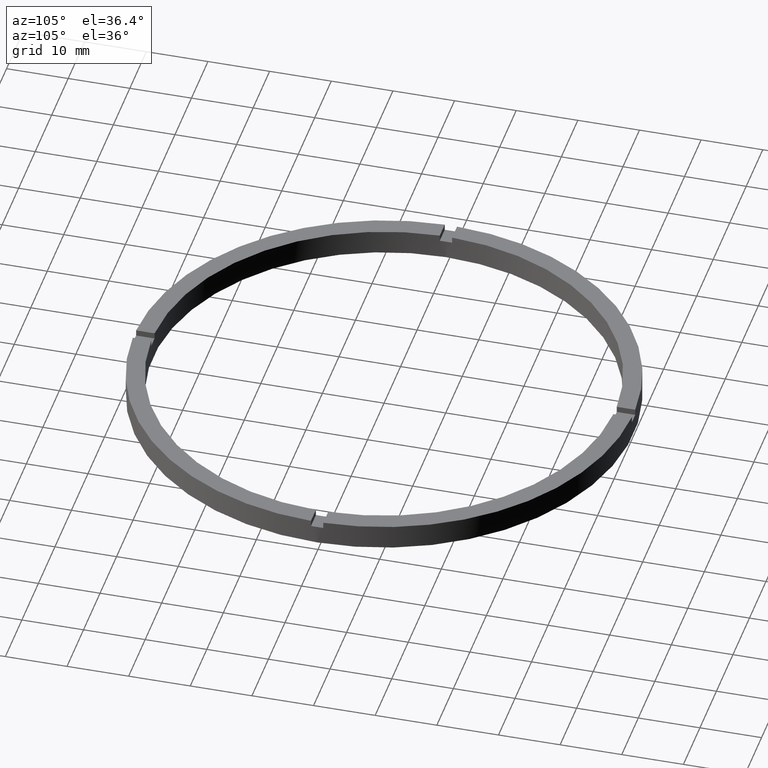
[diagram: clean part render]
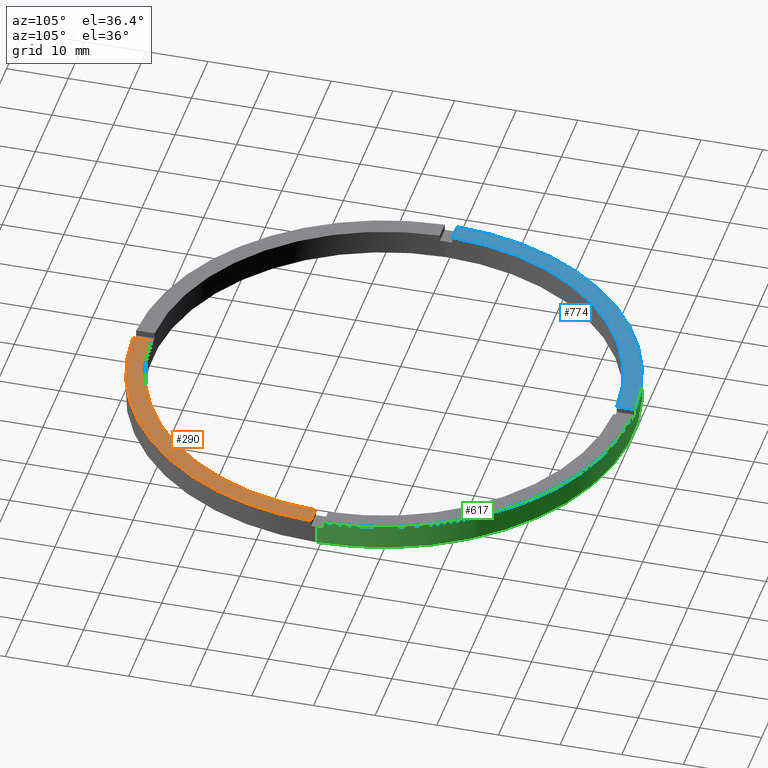
[diagram: same view with three faces highlighted in distinct colors, each labeled with its STEP entity id]
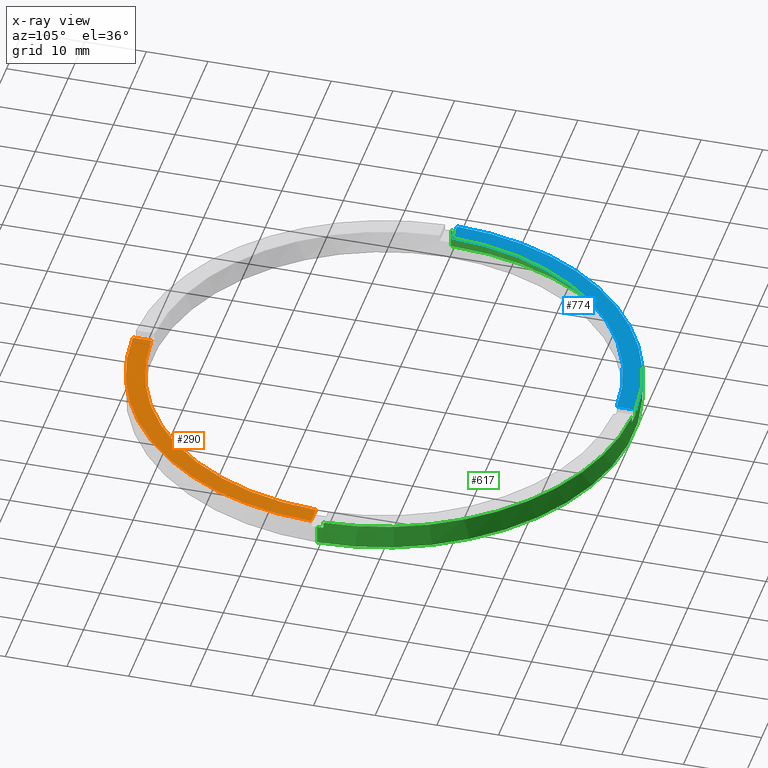
[diagram: x-ray of the same camera — body ghosted, the three highlighted faces saturated]
A machine part, auxiliary view with three faces highlighted in distinct colors.
The next image is the same camera in x-ray (body ghosted, the three faces saturated) — at least one of them is partly hidden behind the body in this view.
Their STEP definitions:

[orange] entity #290 — the highlighted planar face has unit normal (0, 0, 1).
#1 = AXIS2_PLACEMENT_3D ( 'NONE', #721, #779, #77 ) ;
#3 = DIRECTION ( 'NONE',  ( 1.000000000000000000, 0.000000000000000000, 0.000000000000000000 ) ) ;
#9 = DIRECTION ( 'NONE',  ( 0.000000000000000000, 0.000000000000000000, 1.000000000000000000 ) ) ;
#40 = LINE ( 'NONE', #628, #303 ) ;
#73 = VECTOR ( 'NONE', #529, 1000.000000000000000 ) ;
#77 = DIRECTION ( 'NONE',  ( 1.000000000000000000, 0.000000000000000000, 0.000000000000000000 ) ) ;
#84 = CARTESIAN_POINT ( 'NONE',  ( 0.000000000000000000, 0.000000000000000000, 4.000000000000000000 ) ) ;
#129 = PLANE ( 'NONE',  #412 ) ;
#132 = EDGE_CURVE ( 'NONE', #398, #511, #356, .T. ) ;
#137 = ORIENTED_EDGE ( 'NONE', *, *, #498, .F. ) ;
#180 = CARTESIAN_POINT ( 'NONE',  ( 37.48666429545312440, -1.000000000000157208, 4.000000000000000000 ) ) ;
#264 = CARTESIAN_POINT ( 'NONE',  ( 0.9999999999998409050, -40.48765243873742037, 4.000000000000000000 ) ) ;
#269 = CARTESIAN_POINT ( 'NONE',  ( 40.48765243873741326, -1.000000000000156986, 4.000000000000000000 ) ) ;
#290 = ADVANCED_FACE ( 'NONE', ( #322 ), #129, .T. ) ;
#303 = VECTOR ( 'NONE', #554, 1000.000000000000000 ) ;
#322 = FACE_OUTER_BOUND ( 'NONE', #418, .T. ) ;
#356 = CIRCLE ( 'NONE', #1, 40.50000000000000000 ) ;
#368 = ORIENTED_EDGE ( 'NONE', *, *, #520, .F. ) ;
#388 = EDGE_CURVE ( 'NONE', #677, #511, #603, .T. ) ;
#392 = ORIENTED_EDGE ( 'NONE', *, *, #132, .T. ) ;
#398 = VERTEX_POINT ( 'NONE', #264 ) ;
#400 = CARTESIAN_POINT ( 'NONE',  ( 0.9999999999998404610, -37.48666429545313150, 4.000000000000000000 ) ) ;
#412 = AXIS2_PLACEMENT_3D ( 'NONE', #497, #782, #490 ) ;
#418 = EDGE_LOOP ( 'NONE', ( #420, #368, #137, #392 ) ) ;
#420 = ORIENTED_EDGE ( 'NONE', *, *, #388, .F. ) ;
#474 = CARTESIAN_POINT ( 'NONE',  ( 30.49999999999999289, -1.000000000000157652, 4.000000000000000000 ) ) ;
#490 = DIRECTION ( 'NONE',  ( 1.000000000000000000, 0.000000000000000000, -0.000000000000000000 ) ) ;
#497 = CARTESIAN_POINT ( 'NONE',  ( 0.000000000000000000, 0.000000000000000000, 4.000000000000000000 ) ) ;
#498 = EDGE_CURVE ( 'NONE', #398, #515, #40, .T. ) ;
#511 = VERTEX_POINT ( 'NONE', #269 ) ;
#515 = VERTEX_POINT ( 'NONE', #400 ) ;
#520 = EDGE_CURVE ( 'NONE', #515, #677, #583, .T. ) ;
#529 = DIRECTION ( 'NONE',  ( 1.000000000000000000, 6.505213034913025371E-17, 0.000000000000000000 ) ) ;
#554 = DIRECTION ( 'NONE',  ( -1.301042606982605074E-16, 1.000000000000000000, -0.000000000000000000 ) ) ;
#583 = CIRCLE ( 'NONE', #778, 37.50000000000000711 ) ;
#603 = LINE ( 'NONE', #474, #73 ) ;
#628 = CARTESIAN_POINT ( 'NONE',  ( 0.9999999999998395728, -30.50000000000018119, 4.000000000000000000 ) ) ;
#677 = VERTEX_POINT ( 'NONE', #180 ) ;
#721 = CARTESIAN_POINT ( 'NONE',  ( 0.000000000000000000, 0.000000000000000000, 4.000000000000000000 ) ) ;
#778 = AXIS2_PLACEMENT_3D ( 'NONE', #84, #9, #3 ) ;
#779 = DIRECTION ( 'NONE',  ( 0.000000000000000000, 0.000000000000000000, 1.000000000000000000 ) ) ;
#782 = DIRECTION ( 'NONE',  ( 0.000000000000000000, 0.000000000000000000, 1.000000000000000000 ) ) ;

[blue] entity #774 — the highlighted planar face has unit normal (0, 0, 1).
#39 = DIRECTION ( 'NONE',  ( -1.000000000000000000, -1.951563910473907735E-16, 0.000000000000000000 ) ) ;
#68 = AXIS2_PLACEMENT_3D ( 'NONE', #657, #724, #676 ) ;
#69 = LINE ( 'NONE', #546, #320 ) ;
#99 = CARTESIAN_POINT ( 'NONE',  ( -1.000000000000025535, 37.48666429545312440, 4.000000000000000000 ) ) ;
#140 = DIRECTION ( 'NONE',  ( -0.000000000000000000, -1.000000000000000000, -0.000000000000000000 ) ) ;
#170 = CARTESIAN_POINT ( 'NONE',  ( 0.000000000000000000, 0.000000000000000000, 4.000000000000000000 ) ) ;
#173 = DIRECTION ( 'NONE',  ( 1.000000000000000000, 0.000000000000000000, 0.000000000000000000 ) ) ;
#175 = EDGE_CURVE ( 'NONE', #768, #693, #579, .T. ) ;
#207 = DIRECTION ( 'NONE',  ( 0.000000000000000000, 0.000000000000000000, 1.000000000000000000 ) ) ;
#222 = CARTESIAN_POINT ( 'NONE',  ( -40.48765243873742037, 0.9999999999999715783, 4.000000000000000000 ) ) ;
#241 = EDGE_CURVE ( 'NONE', #768, #627, #69, .T. ) ;
#270 = DIRECTION ( 'NONE',  ( 1.000000000000000000, 0.000000000000000000, 0.000000000000000000 ) ) ;
#275 = CARTESIAN_POINT ( 'NONE',  ( -1.000000000000025535, 40.48765243873741326, 4.000000000000000000 ) ) ;
#286 = CIRCLE ( 'NONE', #720, 37.50000000000000711 ) ;
#320 = VECTOR ( 'NONE', #140, 1000.000000000000000 ) ;
#341 = DIRECTION ( 'NONE',  ( 0.000000000000000000, 0.000000000000000000, 1.000000000000000000 ) ) ;
#377 = VERTEX_POINT ( 'NONE', #584 ) ;
#473 = EDGE_CURVE ( 'NONE', #377, #693, #557, .T. ) ;
#488 = ORIENTED_EDGE ( 'NONE', *, *, #473, .F. ) ;
#494 = ORIENTED_EDGE ( 'NONE', *, *, #241, .F. ) ;
#510 = ORIENTED_EDGE ( 'NONE', *, *, #175, .T. ) ;
#546 = CARTESIAN_POINT ( 'NONE',  ( -1.000000000000025535, 30.50000000000000000, 4.000000000000000000 ) ) ;
#549 = FACE_OUTER_BOUND ( 'NONE', #623, .T. ) ;
#557 = LINE ( 'NONE', #769, #566 ) ;
#566 = VECTOR ( 'NONE', #39, 1000.000000000000000 ) ;
#569 = PLANE ( 'NONE',  #68 ) ;
#579 = CIRCLE ( 'NONE', #607, 40.50000000000000000 ) ;
#584 = CARTESIAN_POINT ( 'NONE',  ( -37.48666429545313150, 0.9999999999999720224, 4.000000000000000000 ) ) ;
#607 = AXIS2_PLACEMENT_3D ( 'NONE', #756, #207, #270 ) ;
#623 = EDGE_LOOP ( 'NONE', ( #494, #510, #488, #652 ) ) ;
#627 = VERTEX_POINT ( 'NONE', #99 ) ;
#652 = ORIENTED_EDGE ( 'NONE', *, *, #763, .F. ) ;
#657 = CARTESIAN_POINT ( 'NONE',  ( 0.000000000000000000, 0.000000000000000000, 4.000000000000000000 ) ) ;
#676 = DIRECTION ( 'NONE',  ( 1.000000000000000000, 0.000000000000000000, -0.000000000000000000 ) ) ;
#693 = VERTEX_POINT ( 'NONE', #222 ) ;
#720 = AXIS2_PLACEMENT_3D ( 'NONE', #170, #341, #173 ) ;
#724 = DIRECTION ( 'NONE',  ( 0.000000000000000000, 0.000000000000000000, 1.000000000000000000 ) ) ;
#756 = CARTESIAN_POINT ( 'NONE',  ( 0.000000000000000000, 0.000000000000000000, 4.000000000000000000 ) ) ;
#763 = EDGE_CURVE ( 'NONE', #627, #377, #286, .T. ) ;
#768 = VERTEX_POINT ( 'NONE', #275 ) ;
#769 = CARTESIAN_POINT ( 'NONE',  ( -30.50000000000018829, 0.9999999999999735767, 4.000000000000000000 ) ) ;
#774 = ADVANCED_FACE ( 'NONE', ( #549 ), #569, .T. ) ;

[green] entity #617 — the highlighted cylindrical surface (partial cylindrical patch) has radius 40.5 mm, axis along (-0, -0, -1).
#6 = EDGE_CURVE ( 'NONE', #411, #124, #618, .T. ) ;
#19 = DIRECTION ( 'NONE',  ( -1.000000000000000000, 0.000000000000000000, 0.000000000000000000 ) ) ;
#21 = VECTOR ( 'NONE', #475, 1000.000000000000000 ) ;
#25 = CIRCLE ( 'NONE', #200, 40.50000000000000000 ) ;
#30 = FACE_OUTER_BOUND ( 'NONE', #757, .T. ) ;
#32 = CYLINDRICAL_SURFACE ( 'NONE', #211, 40.50000000000000000 ) ;
#41 = CARTESIAN_POINT ( 'NONE',  ( 40.50000000000000000, 4.959819536546780600E-15, 0.000000000000000000 ) ) ;
#50 = CARTESIAN_POINT ( 'NONE',  ( 40.50000000000000000, 4.959819536546780600E-15, 4.000000000000000000 ) ) ;
#58 = CIRCLE ( 'NONE', #447, 40.50000000000000000 ) ;
#65 = CIRCLE ( 'NONE', #279, 40.50000000000000000 ) ;
#78 = CIRCLE ( 'NONE', #451, 40.50000000000000000 ) ;
#86 = CARTESIAN_POINT ( 'NONE',  ( 0.9999999999999744649, 40.48765243873742037, 4.000000000000000000 ) ) ;
#88 = DIRECTION ( 'NONE',  ( -0.000000000000000000, -0.000000000000000000, -1.000000000000000000 ) ) ;
#108 = VERTEX_POINT ( 'NONE', #127 ) ;
#110 = VERTEX_POINT ( 'NONE', #559 ) ;
#124 = VERTEX_POINT ( 'NONE', #748 ) ;
#127 = CARTESIAN_POINT ( 'NONE',  ( 40.50000000000000000, 4.959819536546780600E-15, 3.000000000000000000 ) ) ;
#128 = ORIENTED_EDGE ( 'NONE', *, *, #574, .F. ) ;
#134 = ORIENTED_EDGE ( 'NONE', *, *, #6, .T. ) ;
#138 = ORIENTED_EDGE ( 'NONE', *, *, #444, .F. ) ;
#147 = VERTEX_POINT ( 'NONE', #323 ) ;
#156 = EDGE_CURVE ( 'NONE', #147, #110, #367, .T. ) ;
#158 = ORIENTED_EDGE ( 'NONE', *, *, #204, .F. ) ;
#166 = DIRECTION ( 'NONE',  ( 0.000000000000000000, 0.000000000000000000, 1.000000000000000000 ) ) ;
#175 = EDGE_CURVE ( 'NONE', #768, #693, #579, .T. ) ;
#176 = DIRECTION ( 'NONE',  ( 1.000000000000000000, 0.000000000000000000, 0.000000000000000000 ) ) ;
#186 = DIRECTION ( 'NONE',  ( 1.000000000000000000, 0.000000000000000000, 0.000000000000000000 ) ) ;
#193 = CARTESIAN_POINT ( 'NONE',  ( -40.48765243873742037, 0.9999999999999715783, 4.000000000000000000 ) ) ;
#200 = AXIS2_PLACEMENT_3D ( 'NONE', #783, #251, #442 ) ;
#202 = CARTESIAN_POINT ( 'NONE',  ( 40.48765243873742037, 0.9999999999998430145, 4.000000000000000000 ) ) ;
#204 = EDGE_CURVE ( 'NONE', #108, #124, #78, .T. ) ;
#207 = DIRECTION ( 'NONE',  ( 0.000000000000000000, 0.000000000000000000, 1.000000000000000000 ) ) ;
#208 = EDGE_CURVE ( 'NONE', #509, #693, #601, .T. ) ;
#211 = AXIS2_PLACEMENT_3D ( 'NONE', #330, #88, #19 ) ;
#216 = AXIS2_PLACEMENT_3D ( 'NONE', #707, #691, #176 ) ;
#222 = CARTESIAN_POINT ( 'NONE',  ( -40.48765243873742037, 0.9999999999999715783, 4.000000000000000000 ) ) ;
#236 = VERTEX_POINT ( 'NONE', #296 ) ;
#251 = DIRECTION ( 'NONE',  ( 0.000000000000000000, 0.000000000000000000, 1.000000000000000000 ) ) ;
#253 = DIRECTION ( 'NONE',  ( 0.000000000000000000, 0.000000000000000000, 1.000000000000000000 ) ) ;
#257 = EDGE_CURVE ( 'NONE', #758, #236, #327, .T. ) ;
#270 = DIRECTION ( 'NONE',  ( 1.000000000000000000, 0.000000000000000000, 0.000000000000000000 ) ) ;
#271 = CARTESIAN_POINT ( 'NONE',  ( 0.000000000000000000, 0.000000000000000000, 3.000000000000000000 ) ) ;
#275 = CARTESIAN_POINT ( 'NONE',  ( -1.000000000000025535, 40.48765243873741326, 4.000000000000000000 ) ) ;
#279 = AXIS2_PLACEMENT_3D ( 'NONE', #397, #556, #694 ) ;
#283 = LINE ( 'NONE', #762, #21 ) ;
#296 = CARTESIAN_POINT ( 'NONE',  ( -40.50000000000000000, 0.000000000000000000, 0.000000000000000000 ) ) ;
#305 = DIRECTION ( 'NONE',  ( -0.000000000000000000, -0.000000000000000000, -1.000000000000000000 ) ) ;
#306 = DIRECTION ( 'NONE',  ( -0.000000000000000000, -0.000000000000000000, -1.000000000000000000 ) ) ;
#323 = CARTESIAN_POINT ( 'NONE',  ( 0.9999999999999744649, 40.48765243873742037, 3.000000000000000000 ) ) ;
#325 = VECTOR ( 'NONE', #545, 1000.000000000000000 ) ;
#327 = LINE ( 'NONE', #614, #573 ) ;
#330 = CARTESIAN_POINT ( 'NONE',  ( 0.000000000000000000, 0.000000000000000000, 4.000000000000000000 ) ) ;
#338 = LINE ( 'NONE', #50, #325 ) ;
#345 = VECTOR ( 'NONE', #253, 1000.000000000000000 ) ;
#353 = CIRCLE ( 'NONE', #216, 40.50000000000000000 ) ;
#367 = LINE ( 'NONE', #86, #626 ) ;
#374 = DIRECTION ( 'NONE',  ( 0.000000000000000000, 0.000000000000000000, 1.000000000000000000 ) ) ;
#376 = VECTOR ( 'NONE', #305, 1000.000000000000000 ) ;
#397 = CARTESIAN_POINT ( 'NONE',  ( 0.000000000000000000, 0.000000000000000000, 3.000000000000000000 ) ) ;
#404 = ORIENTED_EDGE ( 'NONE', *, *, #156, .T. ) ;
#407 = VERTEX_POINT ( 'NONE', #41 ) ;
#411 = VERTEX_POINT ( 'NONE', #202 ) ;
#413 = ORIENTED_EDGE ( 'NONE', *, *, #553, .F. ) ;
#416 = ORIENTED_EDGE ( 'NONE', *, *, #257, .F. ) ;
#427 = ORIENTED_EDGE ( 'NONE', *, *, #728, .T. ) ;
#442 = DIRECTION ( 'NONE',  ( 1.000000000000000000, 0.000000000000000000, 0.000000000000000000 ) ) ;
#443 = CARTESIAN_POINT ( 'NONE',  ( 0.000000000000000000, 0.000000000000000000, 3.000000000000000000 ) ) ;
#444 = EDGE_CURVE ( 'NONE', #411, #110, #353, .T. ) ;
#447 = AXIS2_PLACEMENT_3D ( 'NONE', #271, #697, #750 ) ;
#451 = AXIS2_PLACEMENT_3D ( 'NONE', #443, #374, #186 ) ;
#475 = DIRECTION ( 'NONE',  ( -0.000000000000000000, -0.000000000000000000, -1.000000000000000000 ) ) ;
#476 = ORIENTED_EDGE ( 'NONE', *, *, #580, .T. ) ;
#509 = VERTEX_POINT ( 'NONE', #633 ) ;
#538 = CARTESIAN_POINT ( 'NONE',  ( 40.48765243873742037, 0.9999999999998430145, 4.000000000000000000 ) ) ;
#545 = DIRECTION ( 'NONE',  ( -0.000000000000000000, -0.000000000000000000, -1.000000000000000000 ) ) ;
#553 = EDGE_CURVE ( 'NONE', #147, #740, #65, .T. ) ;
#556 = DIRECTION ( 'NONE',  ( 0.000000000000000000, -0.000000000000000000, 1.000000000000000000 ) ) ;
#559 = CARTESIAN_POINT ( 'NONE',  ( 0.9999999999999744649, 40.48765243873742037, 4.000000000000000000 ) ) ;
#564 = CARTESIAN_POINT ( 'NONE',  ( -40.50000000000000000, 0.000000000000000000, 3.000000000000000000 ) ) ;
#573 = VECTOR ( 'NONE', #306, 1000.000000000000000 ) ;
#574 = EDGE_CURVE ( 'NONE', #509, #758, #58, .T. ) ;
#579 = CIRCLE ( 'NONE', #607, 40.50000000000000000 ) ;
#580 = EDGE_CURVE ( 'NONE', #108, #407, #338, .T. ) ;
#601 = LINE ( 'NONE', #193, #345 ) ;
#607 = AXIS2_PLACEMENT_3D ( 'NONE', #756, #207, #270 ) ;
#614 = CARTESIAN_POINT ( 'NONE',  ( -40.50000000000000000, 0.000000000000000000, 4.000000000000000000 ) ) ;
#617 = ADVANCED_FACE ( 'NONE', ( #30 ), #32, .T. ) ;
#618 = LINE ( 'NONE', #538, #376 ) ;
#626 = VECTOR ( 'NONE', #166, 1000.000000000000000 ) ;
#633 = CARTESIAN_POINT ( 'NONE',  ( -40.48765243873742037, 0.9999999999999715783, 3.000000000000000000 ) ) ;
#645 = CARTESIAN_POINT ( 'NONE',  ( -1.000000000000025535, 40.48765243873741326, 3.000000000000000000 ) ) ;
#646 = ORIENTED_EDGE ( 'NONE', *, *, #780, .T. ) ;
#648 = ORIENTED_EDGE ( 'NONE', *, *, #208, .T. ) ;
#691 = DIRECTION ( 'NONE',  ( 0.000000000000000000, 0.000000000000000000, 1.000000000000000000 ) ) ;
#693 = VERTEX_POINT ( 'NONE', #222 ) ;
#694 = DIRECTION ( 'NONE',  ( 1.000000000000000000, 0.000000000000000000, 0.000000000000000000 ) ) ;
#697 = DIRECTION ( 'NONE',  ( 0.000000000000000000, 0.000000000000000000, 1.000000000000000000 ) ) ;
#707 = CARTESIAN_POINT ( 'NONE',  ( 0.000000000000000000, 0.000000000000000000, 4.000000000000000000 ) ) ;
#728 = EDGE_CURVE ( 'NONE', #768, #740, #283, .T. ) ;
#740 = VERTEX_POINT ( 'NONE', #645 ) ;
#745 = ORIENTED_EDGE ( 'NONE', *, *, #175, .F. ) ;
#748 = CARTESIAN_POINT ( 'NONE',  ( 40.48765243873742037, 0.9999999999998430145, 3.000000000000000000 ) ) ;
#750 = DIRECTION ( 'NONE',  ( 1.000000000000000000, 0.000000000000000000, 0.000000000000000000 ) ) ;
#756 = CARTESIAN_POINT ( 'NONE',  ( 0.000000000000000000, 0.000000000000000000, 4.000000000000000000 ) ) ;
#757 = EDGE_LOOP ( 'NONE', ( #158, #476, #646, #416, #128, #648, #745, #427, #413, #404, #138, #134 ) ) ;
#758 = VERTEX_POINT ( 'NONE', #564 ) ;
#762 = CARTESIAN_POINT ( 'NONE',  ( -1.000000000000025535, 40.48765243873741326, 4.000000000000000000 ) ) ;
#768 = VERTEX_POINT ( 'NONE', #275 ) ;
#780 = EDGE_CURVE ( 'NONE', #407, #236, #25, .T. ) ;
#783 = CARTESIAN_POINT ( 'NONE',  ( 0.000000000000000000, 0.000000000000000000, 0.000000000000000000 ) ) ;